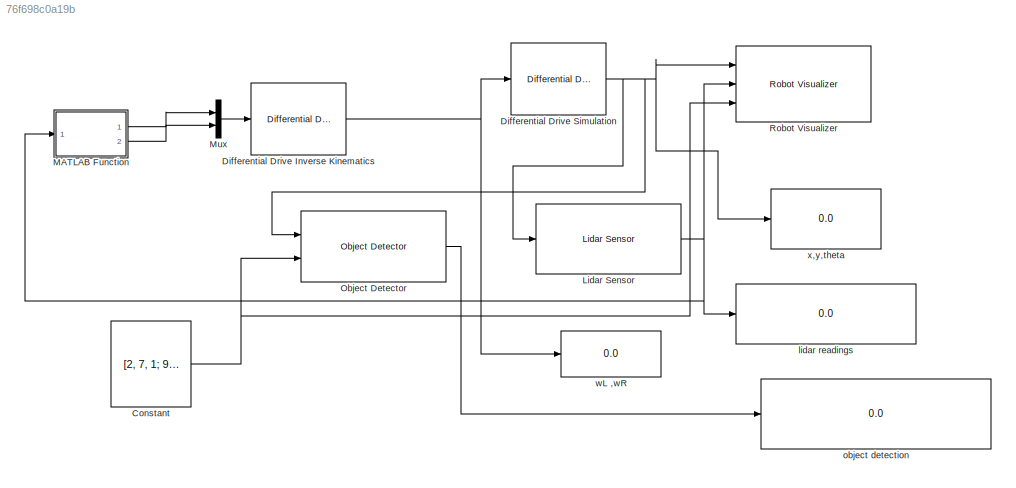
MODEL slx_76f698c0a19b
KIND model
CONFIG AbsTol = auto
CONFIG EnableMultiTasking = off
CONFIG FixedStep = auto
CONFIG MaxStep = auto
CONFIG MinStep = auto
CONFIG RelTol = 1e-3
CONFIG SampleTimeConstraint = Unconstrained
CONFIG Solver = VariableStepAuto
CONFIG SolverName = VariableStepAuto
CONFIG StartTime = 0.0
CONFIG StopTime = inf
BLOCK [Constant] Constant
  Value = [2, 7, 1; 9, 11, 1; 8, 4, 1]
BLOCK [Reference] Differential Drive Inverse Kinematics  REF=mobileRoboticsLib/Kinematic Models/Differential Drive/Differential Drive
Inverse Kinematics
  Ports = [1, 1]
  SourceBlock = mobileRoboticsLib/Kinematic Models/Differential Drive/Differential Drive\nInverse Kinematics
  SourceProductName = Mobile Robotics Simulation Toolbox
  SourceType = Differential Drive Inverse Kinematics
BLOCK [Reference] Differential Drive Simulation  REF=mobileRoboticsLib/Kinematic Models/Differential Drive/Differential Drive Simulation
  Ports = [1, 1]
  SourceBlock = mobileRoboticsLib/Kinematic Models/Differential Drive/Differential Drive Simulation
  SourceProductName = Mobile Robotics Simulation Toolbox
  SourceType = Differential Drive Simulation
BLOCK [Reference] Lidar Sensor  REF=mobileRoboticsLib/Environments/Lidar Sensor
  Ports = [1, 1]
  SourceBlock = mobileRoboticsLib/Environments/Lidar Sensor
  SourceProductName = Mobile Robotics Simulation Toolbox
  SourceType = LidarSensor
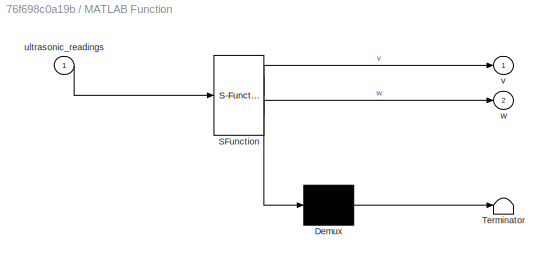
BLOCK [SubSystem] MATLAB Function
  ErrorFcn = Stateflow.Translate.translate
  PermitHierarchicalResolution = ExplicitOnly
  Ports = [1, 2]
  RequestExecContextInheritance = off
  SFBlockType = MATLAB Function
  TreatAsAtomicUnit = on
BLOCK [Demux] MATLAB Function/ Demux 
  Outputs = 1
  Ports = [1, 1]
BLOCK [S-Function] MATLAB Function/ SFunction 
  EnableBusSupport = on
  FunctionName = sf_sfun
  PortCounts = [1 3]
  Ports = [1, 3]
  SFcnIsStateOwnerBlock = off
  SFunctionDeploymentMode = off
  Tag = Stateflow S-Function fwd_and_inversekin 2
BLOCK [Terminator] MATLAB Function/ Terminator 
BLOCK [Inport] MATLAB Function/ultrasonic_readings
  IconDisplay = Port number
BLOCK [Outport] MATLAB Function/v
  IconDisplay = Port number
BLOCK [Outport] MATLAB Function/w
  IconDisplay = Port number
  Port = 2
BLOCK [Mux] Mux
  DisplayOption = bar
  Inputs = 2
  Ports = [2, 1]
BLOCK [Reference] Object Detector  REF=mobileRoboticsLib/Environments/Object Detector
  Ports = [2, 1]
  SourceBlock = mobileRoboticsLib/Environments/Object Detector
  SourceProductName = Mobile Robotics Simulation Toolbox
  SourceType = ObjectDetector
BLOCK [Reference] Robot Visualizer  REF=mobileRoboticsLib/Environments/Robot Visualizer
  Ports = [3]
  SourceBlock = mobileRoboticsLib/Environments/Robot Visualizer
  SourceProductName = Mobile Robotics Simulation Toolbox
  SourceType = Visualizer2D
BLOCK [Display] lidar readings
  Decimation = 1
  Ports = [1]
BLOCK [Display] object detection
  Decimation = 1
  Ports = [1]
BLOCK [Display] wL ,wR
  Decimation = 1
  Ports = [1]
BLOCK [Display] x,y,theta
  Decimation = 1
  Ports = [1]
NET Constant:1 -> Object Detector:2, Robot Visualizer:3
NET Differential Drive Inverse Kinematics:1 -> Differential Drive Simulation:1, wL ,wR:1
NET Differential Drive Simulation:1 -> Lidar Sensor:1, Object Detector:1, Robot Visualizer:1, x,y,theta:1
NET Lidar Sensor:1 -> MATLAB Function:1, Robot Visualizer:2, lidar readings:1
LINE MATLAB Function:1 -> Mux:1
LINE MATLAB Function:2 -> Mux:2
LINE Mux:1 -> Differential Drive Inverse Kinematics:1
LINE Object Detector:1 -> object detection:1
note: NET lines group one-source signal fan-out (src -> all destinations, sorted); 1:1 wires keep LINE
CHART MATLAB Function states=1 transitions=1
  STATE_LABEL 'eML_blk_kernel()'
  STATE_LABEL 'SCRIPT:\nfunction [v,w] = fcn(ultrasonic_readings)\ndl = ultrasonic_readings(3);\ndf = ultrasonic_readings(2);\ndr = ultrasonic_readings(1);\nd = 1;\n    if df > d && dl > d && dr > d\n        [v,w] = change_state(0);\n    elseif df < d && dl > d && dr > d\n        [v,w] = change_state(1);\n    elseif df > d && dl > d && dr < d\n        [v,w] = change_state(2);\n    elseif df > d && dl < d && dr > d\n        [...<+665ch>'
